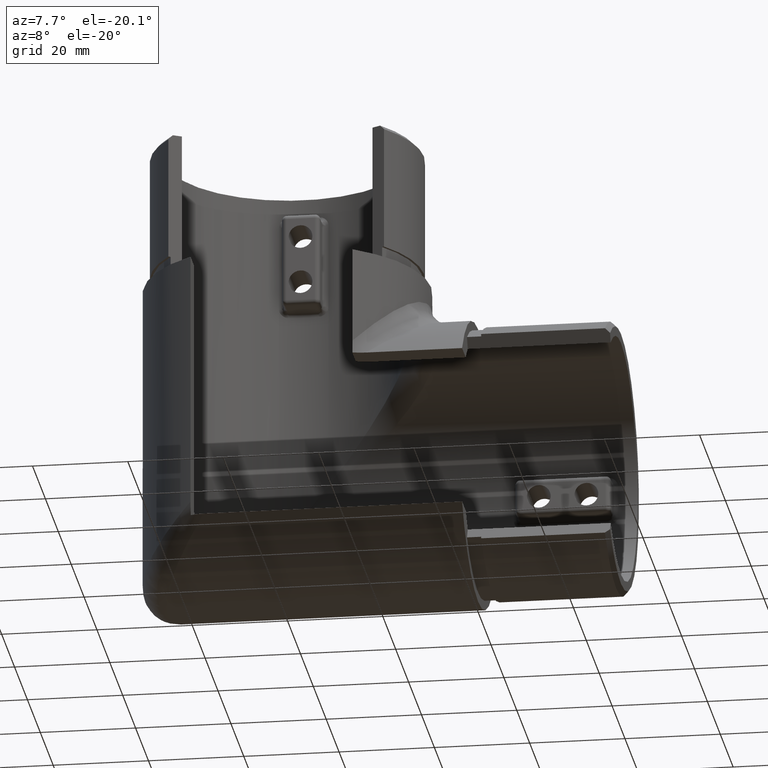
[diagram: clean part render]
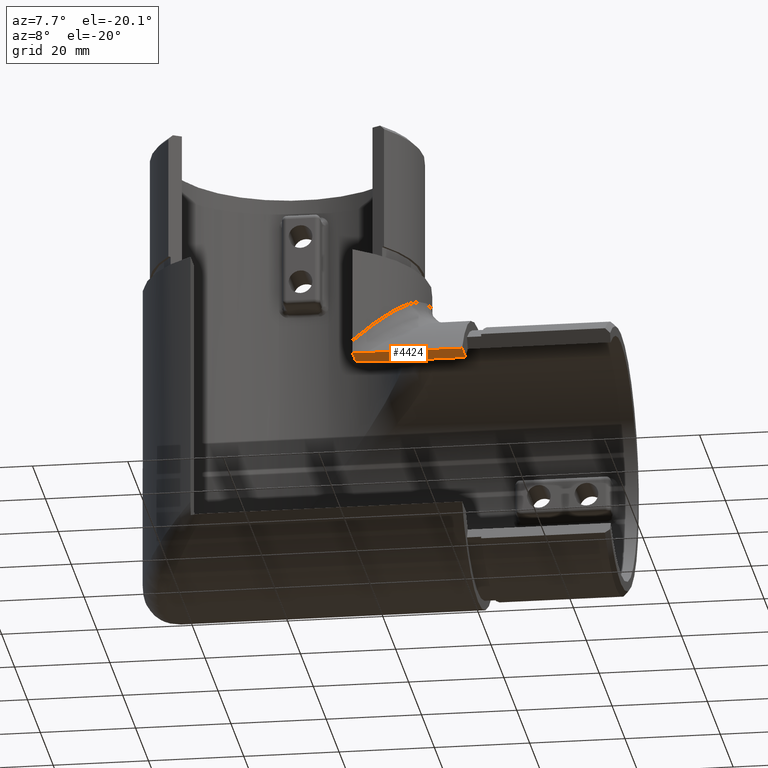
[diagram: same view with one face highlighted and labeled with its STEP entity id]
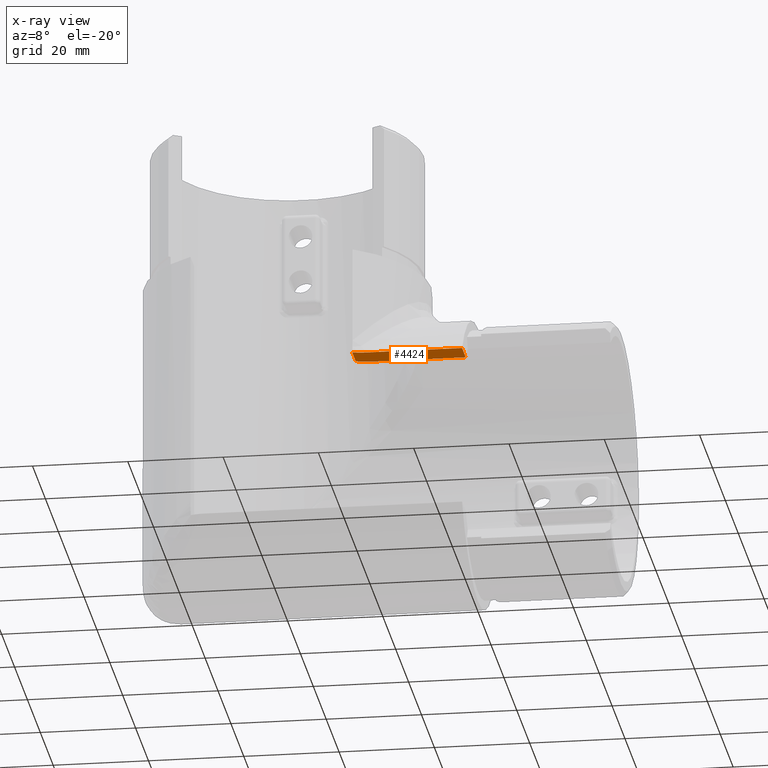
[diagram: x-ray of the same camera — body ghosted, the highlighted face saturated]
A machine part, auxiliary view. The second image highlights one B-rep face of the part: STEP entity #4424.
The next image is the same camera in x-ray: the body ghosted, the highlighted face saturated — about 0% of this face is hidden behind the body in this view.
In plain terms, the highlighted planar face has unit normal (0, 0, -1).
Its self-contained STEP definition (entity closure, byte-faithful):
#206 = CARTESIAN_POINT ( 'NONE',  ( 40.00000000000000711, -19.20735536194402471, -22.99999999999999645 ) ) ;
#374 = CARTESIAN_POINT ( 'NONE',  ( 19.17686075418314928, -19.28356421026232681, -22.99999999999999289 ) ) ;
#1131 = DIRECTION ( 'NONE',  ( 1.000000000000000000, 0.000000000000000000, 0.000000000000000000 ) ) ;
#1763 = VECTOR ( 'NONE', #1131, 1000.000000000000000 ) ;
#2103 = EDGE_CURVE ( 'NONE', #8774, #13327, #12369, .T. ) ;
#2540 = ORIENTED_EDGE ( 'NONE', *, *, #17913, .F. ) ;
#2543 = CARTESIAN_POINT ( 'NONE',  ( -51.71678411657767782, -19.20735536194402471, -22.99999999999999645 ) ) ;
#2747 = CARTESIAN_POINT ( 'NONE',  ( 16.99999999999999645, -19.90031787121002438, -23.00000000000000000 ) ) ;
#3144 = CARTESIAN_POINT ( 'NONE',  ( 19.73738237690213282, -19.20735536194402115, -22.99999999999999645 ) ) ;
#3249 = CARTESIAN_POINT ( 'NONE',  ( 40.00000000000000000, -19.20735536194402471, -22.99999999999999645 ) ) ;
#3443 = PLANE ( 'NONE',  #4798 ) ;
#3575 = CARTESIAN_POINT ( 'NONE',  ( -51.71678411657767782, -19.20735536194402471, -22.99999999999999645 ) ) ;
#3773 = CARTESIAN_POINT ( 'NONE',  ( 19.33697634412542854, -24.90025100275095227, -22.99999999999999289 ) ) ;
#3882 = DIRECTION ( 'NONE',  ( 0.000000000000000000, -1.000000000000000000, 0.000000000000000000 ) ) ;
#4424 = ADVANCED_FACE ( 'NONE', ( #5444 ), #3443, .T. ) ;
#4798 = AXIS2_PLACEMENT_3D ( 'NONE', #3575, #4966, #16972 ) ;
#4966 = DIRECTION ( 'NONE',  ( 0.000000000000000000, 0.000000000000000000, -1.000000000000000000 ) ) ;
#5148 = VERTEX_POINT ( 'NONE', #6004 ) ;
#5256 = VERTEX_POINT ( 'NONE', #6576 ) ;
#5444 = FACE_OUTER_BOUND ( 'NONE', #14980, .T. ) ;
#6004 = CARTESIAN_POINT ( 'NONE',  ( 19.81923714759534150, -24.90025100275095227, -22.99999999999999645 ) ) ;
#6497 = EDGE_CURVE ( 'NONE', #8774, #6784, #7024, .T. ) ;
#6576 = CARTESIAN_POINT ( 'NONE',  ( 40.00000000000000711, -24.90025100275095227, -22.99999999999999645 ) ) ;
#6680 = ORIENTED_EDGE ( 'NONE', *, *, #6848, .T. ) ;
#6784 = VERTEX_POINT ( 'NONE', #8101 ) ;
#6848 = EDGE_CURVE ( 'NONE', #5148, #6784, #8294, .T. ) ;
#7024 = LINE ( 'NONE', #8140, #16301 ) ;
#7119 = VERTEX_POINT ( 'NONE', #206 ) ;
#7711 = CARTESIAN_POINT ( 'NONE',  ( 16.99999999999999645, -19.90031787121002438, -23.00000000000000000 ) ) ;
#7785 = CARTESIAN_POINT ( 'NONE',  ( 17.53353948057063150, -19.69507678096089975, -23.00000000000000000 ) ) ;
#8009 = CARTESIAN_POINT ( 'NONE',  ( 20.31384015594542447, -19.20735536194402471, -22.99999999999999645 ) ) ;
#8101 = CARTESIAN_POINT ( 'NONE',  ( 16.99999999999999645, -25.35801441047130567, -23.00000000000000000 ) ) ;
#8140 = CARTESIAN_POINT ( 'NONE',  ( 16.99999999999999645, -19.20735536194402471, -23.00000000000000000 ) ) ;
#8294 = B_SPLINE_CURVE_WITH_KNOTS ( 'NONE', 3,
 ( #9712, #3773, #14211, #9498, #18931, #17496 ),
 .UNSPECIFIED., .F., .F.,
 ( 4, 2, 4 ),
 ( 0.000000000000000000, 0.001428079604909096188, 0.002856159209818192376 ),
 .UNSPECIFIED. ) ;
#8774 = VERTEX_POINT ( 'NONE', #2747 ) ;
#9258 = CARTESIAN_POINT ( 'NONE',  ( 18.07477573758247757, -19.52664271345995672, -23.00000000000000355 ) ) ;
#9498 = CARTESIAN_POINT ( 'NONE',  ( 17.92331839752795730, -25.10425533620945160, -22.99999999999999289 ) ) ;
#9594 = LINE ( 'NONE', #3249, #10048 ) ;
#9712 = CARTESIAN_POINT ( 'NONE',  ( 19.81923714759534150, -24.90025100275095227, -22.99999999999999645 ) ) ;
#9956 = EDGE_CURVE ( 'NONE', #13327, #7119, #12222, .T. ) ;
#10048 = VECTOR ( 'NONE', #10537, 1000.000000000000000 ) ;
#10537 = DIRECTION ( 'NONE',  ( 0.000000000000000000, 1.000000000000000000, 0.000000000000000000 ) ) ;
#11830 = VECTOR ( 'NONE', #17830, 1000.000000000000000 ) ;
#12116 = CARTESIAN_POINT ( 'NONE',  ( 20.31384015594542447, -19.20735536194402471, -22.99999999999999645 ) ) ;
#12222 = LINE ( 'NONE', #2543, #1763 ) ;
#12369 = B_SPLINE_CURVE_WITH_KNOTS ( 'NONE', 3,
 ( #7711, #7785, #9258, #374, #3144, #12116 ),
 .UNSPECIFIED., .F., .F.,
 ( 4, 2, 4 ),
 ( 0.000000000000000000, 0.001692759110033427309, 0.003385518220066854617 ),
 .UNSPECIFIED. ) ;
#12961 = EDGE_CURVE ( 'NONE', #5256, #7119, #9594, .T. ) ;
#13327 = VERTEX_POINT ( 'NONE', #8009 ) ;
#14042 = ORIENTED_EDGE ( 'NONE', *, *, #6497, .F. ) ;
#14181 = LINE ( 'NONE', #14942, #11830 ) ;
#14211 = CARTESIAN_POINT ( 'NONE',  ( 18.86217525837762921, -24.94619332351762253, -22.99999999999999645 ) ) ;
#14267 = ORIENTED_EDGE ( 'NONE', *, *, #9956, .T. ) ;
#14942 = CARTESIAN_POINT ( 'NONE',  ( -51.71678411657767782, -24.90025100275095227, -22.99999999999999645 ) ) ;
#14980 = EDGE_LOOP ( 'NONE', ( #14042, #18326, #14267, #18773, #2540, #6680 ) ) ;
#16301 = VECTOR ( 'NONE', #3882, 1000.000000000000000 ) ;
#16972 = DIRECTION ( 'NONE',  ( -1.000000000000000000, 0.000000000000000000, -0.000000000000000000 ) ) ;
#17496 = CARTESIAN_POINT ( 'NONE',  ( 16.99999999999999645, -25.35801441047130567, -23.00000000000000000 ) ) ;
#17830 = DIRECTION ( 'NONE',  ( 1.000000000000000000, 0.000000000000000000, 0.000000000000000000 ) ) ;
#17913 = EDGE_CURVE ( 'NONE', #5148, #5256, #14181, .T. ) ;
#18326 = ORIENTED_EDGE ( 'NONE', *, *, #2103, .T. ) ;
#18773 = ORIENTED_EDGE ( 'NONE', *, *, #12961, .F. ) ;
#18931 = CARTESIAN_POINT ( 'NONE',  ( 17.45933365213745958, -25.21681248031514500, -22.99999999999999645 ) ) ;